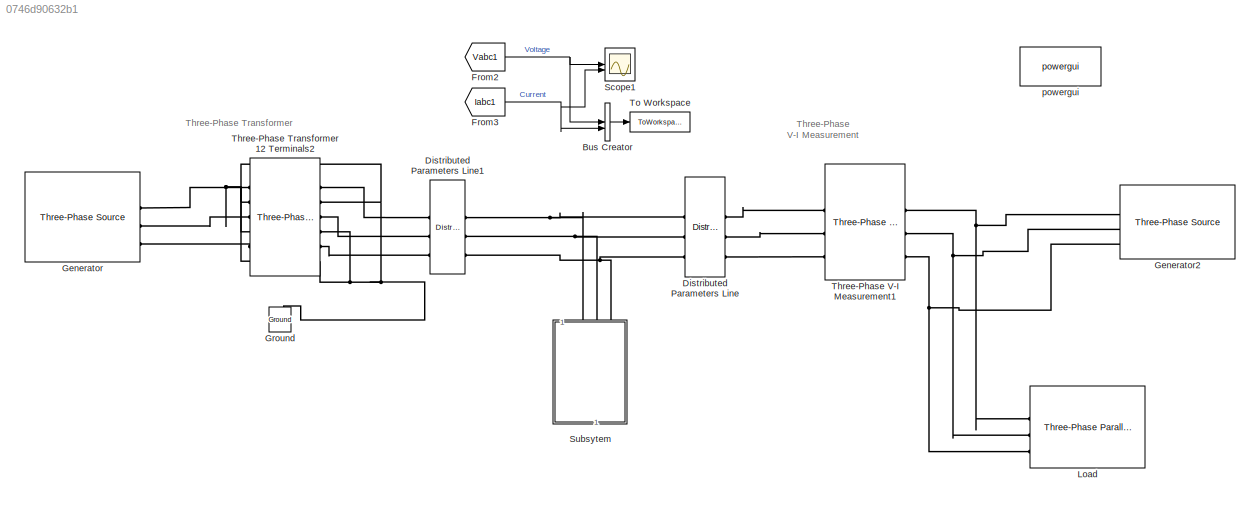
MODEL slx_0746d90632b1
KIND model
CONFIG AbsTol = auto
CONFIG EnableMultiTasking = off
CONFIG FixedStep = auto
CONFIG MaxStep = auto
CONFIG MinStep = auto
CONFIG RelTol = 1e-3
CONFIG SampleTimeConstraint = Unconstrained
CONFIG SolverName = ode45
CONFIG StartTime = 0.0
CONFIG StopTime = 0.6
BLOCK [BusCreator] Bus Creator
  DisplayOption = bar
  InheritFromInputs = on
  Inputs = 2
BLOCK [Reference] Distributed Parameters Line  REF=spsDistributedParametersLineLib/Distributed Parameters Line
  LibrarySourceBlock = sps_lib/Power Grid Elements/Distributed Parameters Line
  SourceBlock = spsDistributedParametersLineLib/Distributed Parameters Line
  SourceType = Distributed Parameters Line
BLOCK [Reference] Distributed Parameters Line1  REF=spsDistributedParametersLineLib/Distributed Parameters Line
  LibrarySourceBlock = sps_lib/Power Grid Elements/Distributed Parameters Line
  SourceBlock = spsDistributedParametersLineLib/Distributed Parameters Line
  SourceType = Distributed Parameters Line
BLOCK [From] From2
  GotoTag = Vabc1
  TagVisibility = global
BLOCK [From] From3
  GotoTag = Iabc1
  TagVisibility = global
BLOCK [Reference] Generator  REF=spsThreePhaseSourceLib/Three-Phase Source
  LibrarySourceBlock = sps_lib/Sources/Three-Phase Source
  SourceBlock = spsThreePhaseSourceLib/Three-Phase Source
  SourceType = Three-Phase Source
BLOCK [Reference] Generator2  REF=spsThreePhaseSourceLib/Three-Phase Source
  LibrarySourceBlock = sps_lib/Sources/Three-Phase Source
  SourceBlock = spsThreePhaseSourceLib/Three-Phase Source
  SourceType = Three-Phase Source
BLOCK [Reference] Ground  REF=spsGroundLib/Ground
  LibrarySourceBlock = sps_lib/Utilities/Ground
  NameLocation = right
  SourceBlock = spsGroundLib/Ground
  SourceType = Ground
BLOCK [Reference] Load  REF=spsThreePhaseParallelRLCLoadLib/Three-Phase
Parallel RLC Load
  AttributesFormatString = \n
  LibrarySourceBlock = sps_lib/Passives/Three-Phase\nParallel RLC Load
  NameLocation = right
  SourceBlock = spsThreePhaseParallelRLCLoadLib/Three-Phase\nParallel RLC Load
  SourceType = Three-Phase Parallel RLC Load
BLOCK [Scope] Scope1
  Floating = off
  NumInputPorts = 2
  ScopeSpecificationString = Simulink.scopes.TimeScopeBlockCfg('CurrentConfiguration', extmgr.ConfigurationSet(extmgr.Configuration('Core','General UI',true,'FigureColor',[1 1 1]),extmgr.Configuration('Core','Source UI',true),extmgr.Configuration('Sources','WiredSimulink',true,'DataLoggingSaveFormat','StructureWithTime','DataLoggingMaxPoints','500000','DataLoggingLimitDataPoints',true,'DataLoggingDecimation','1','DataLoggingD...<+2446ch>
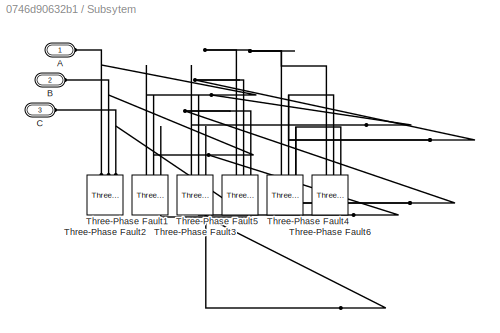
BLOCK [SubSystem] Subsytem
  NameLocation = right
BLOCK [PMIOPort] Subsytem/A
  Side = Left
BLOCK [PMIOPort] Subsytem/B
  Port = 2
  Side = Left
BLOCK [PMIOPort] Subsytem/C
  Port = 3
  Side = Left
BLOCK [Reference] Subsytem/Three-Phase Fault1  REF=spsThreePhaseFaultLib/Three-Phase Fault
  NameLocation = left
  SourceBlock = spsThreePhaseFaultLib/Three-Phase Fault
  SourceType = Three-Phase Fault
BLOCK [Reference] Subsytem/Three-Phase Fault2  REF=spsThreePhaseFaultLib/Three-Phase Fault
  NameLocation = left
  SourceBlock = spsThreePhaseFaultLib/Three-Phase Fault
  SourceType = Three-Phase Fault
BLOCK [Reference] Subsytem/Three-Phase Fault3  REF=spsThreePhaseFaultLib/Three-Phase Fault
  NameLocation = left
  SourceBlock = spsThreePhaseFaultLib/Three-Phase Fault
  SourceType = Three-Phase Fault
BLOCK [Reference] Subsytem/Three-Phase Fault4  REF=spsThreePhaseFaultLib/Three-Phase Fault
  NameLocation = left
  SourceBlock = spsThreePhaseFaultLib/Three-Phase Fault
  SourceType = Three-Phase Fault
BLOCK [Reference] Subsytem/Three-Phase Fault5  REF=spsThreePhaseFaultLib/Three-Phase Fault
  NameLocation = left
  SourceBlock = spsThreePhaseFaultLib/Three-Phase Fault
  SourceType = Three-Phase Fault
BLOCK [Reference] Subsytem/Three-Phase Fault6  REF=spsThreePhaseFaultLib/Three-Phase Fault
  NameLocation = left
  SourceBlock = spsThreePhaseFaultLib/Three-Phase Fault
  SourceType = Three-Phase Fault
BLOCK [Reference] Three-Phase Transformer 12 Terminals2  REF=spsThreePhaseTransformer12TerminalsLib/Three-Phase Transformer
12 Terminals
  LibrarySourceBlock = sps_lib/Power Grid Elements/Three-Phase Transformer\n12 Terminals
  SourceBlock = spsThreePhaseTransformer12TerminalsLib/Three-Phase Transformer\n12 Terminals
  SourceType = Three-Phase Linear Transformer 12-Terminals
BLOCK [Reference] Three-Phase V-I Measurement1  REF=spsThreePhaseVIMeasurementLib/Three-Phase
V-I Measurement
  LibrarySourceBlock = sps_lib/Sensors and Measurements/Three-Phase\nV-I Measurement
  SourceBlock = spsThreePhaseVIMeasurementLib/Three-Phase\nV-I Measurement
  SourceType = Three-Phase VI Measurement
BLOCK [ToWorkspace] To Workspace
  FixptAsFi = on
  MaxDataPoints = inf
  SampleTime = -1
  SaveFormat = Structure With Time
  VariableName = ann
BLOCK [Reference] powergui   REF=spspowerguiLib/powergui
  LibrarySourceBlock = sps_lib/powergui
  Priority = 1
  SourceBlock = spspowerguiLib/powergui
  SourceType = PSB option menu block
ANNOTATION (root): Three-Phase V-I Measurement
ANNOTATION (root): Three-Phase Transformer
LINE Bus Creator:1 -> To Workspace:1
NET From2:1 -> Bus Creator:1, Scope1:1
NET From3:1 -> Bus Creator:2, Scope1:2
PLINE Distributed Parameters Line1:LConn1 -- Three-Phase Transformer 12 Terminals2:RConn1
PLINE Distributed Parameters Line1:LConn2 -- Three-Phase Transformer 12 Terminals2:RConn3
PLINE Distributed Parameters Line1:LConn3 -- Three-Phase Transformer 12 Terminals2:RConn5
PNET net1: Distributed Parameters Line1:RConn1 -- Distributed Parameters Line:LConn1 -- Subsytem:LConn1
PNET net2: Distributed Parameters Line1:RConn2 -- Distributed Parameters Line:LConn2 -- Subsytem:LConn2
PNET net3: Distributed Parameters Line1:RConn3 -- Distributed Parameters Line:LConn3 -- Subsytem:LConn3
PLINE Distributed Parameters Line:RConn1 -- Three-Phase V-I Measurement1:LConn1
PLINE Distributed Parameters Line:RConn2 -- Three-Phase V-I Measurement1:LConn2
PLINE Distributed Parameters Line:RConn3 -- Three-Phase V-I Measurement1:LConn3
PNET net4: Generator2:RConn1 -- Load:LConn1 -- Three-Phase V-I Measurement1:RConn1
PNET net5: Generator2:RConn2 -- Load:LConn2 -- Three-Phase V-I Measurement1:RConn2
PNET net6: Generator2:RConn3 -- Load:LConn3 -- Three-Phase V-I Measurement1:RConn3
PLINE Generator:RConn1 -- Three-Phase Transformer 12 Terminals2:LConn1
PLINE Generator:RConn2 -- Three-Phase Transformer 12 Terminals2:LConn3
PLINE Generator:RConn3 -- Three-Phase Transformer 12 Terminals2:LConn5
PNET net7: Ground:LConn1 -- Three-Phase Transformer 12 Terminals2:LConn2 -- Three-Phase Transformer 12 Terminals2:LConn4 -- Three-Phase Transformer 12 Terminals2:LConn6 -- Three-Phase Transformer 12 Terminals2:RConn2 -- Three-Phase Transformer 12 Terminals2:RConn4 -- Three-Phase Transformer 12 Terminals2:RConn6
PNET net8: Subsytem/A:RConn1 -- Subsytem/Three-Phase Fault1:LConn1 -- Subsytem/Three-Phase Fault2:LConn1 -- Subsytem/Three-Phase Fault3:LConn1 -- Subsytem/Three-Phase Fault4:LConn1 -- Subsytem/Three-Phase Fault5:LConn1 -- Subsytem/Three-Phase Fault6:LConn1
PNET net9: Subsytem/B:RConn1 -- Subsytem/Three-Phase Fault1:LConn2 -- Subsytem/Three-Phase Fault2:LConn2 -- Subsytem/Three-Phase Fault3:LConn2 -- Subsytem/Three-Phase Fault4:LConn2 -- Subsytem/Three-Phase Fault5:LConn2 -- Subsytem/Three-Phase Fault6:LConn2
PNET net10: Subsytem/C:RConn1 -- Subsytem/Three-Phase Fault1:LConn3 -- Subsytem/Three-Phase Fault2:LConn3 -- Subsytem/Three-Phase Fault3:LConn3 -- Subsytem/Three-Phase Fault4:LConn3 -- Subsytem/Three-Phase Fault5:LConn3 -- Subsytem/Three-Phase Fault6:LConn3
note: NET lines group one-source signal fan-out (src -> all destinations, sorted); 1:1 wires keep LINE; PNET lines group multi-terminal physical nets as a canonical sorted terminal list (undirected conserving connections); 2-terminal nets keep the pairwise PLINE form
